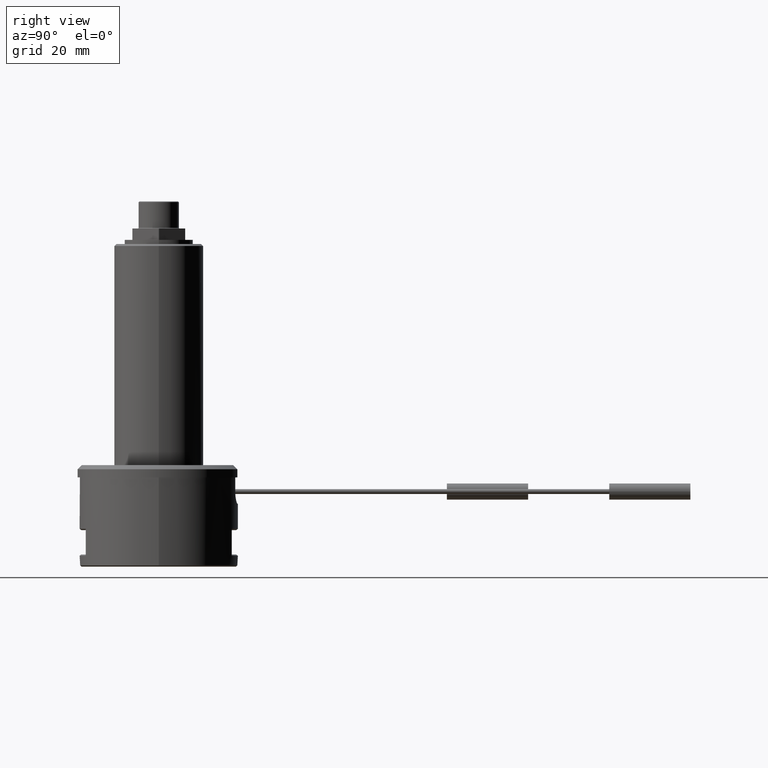
[diagram: clean part render]
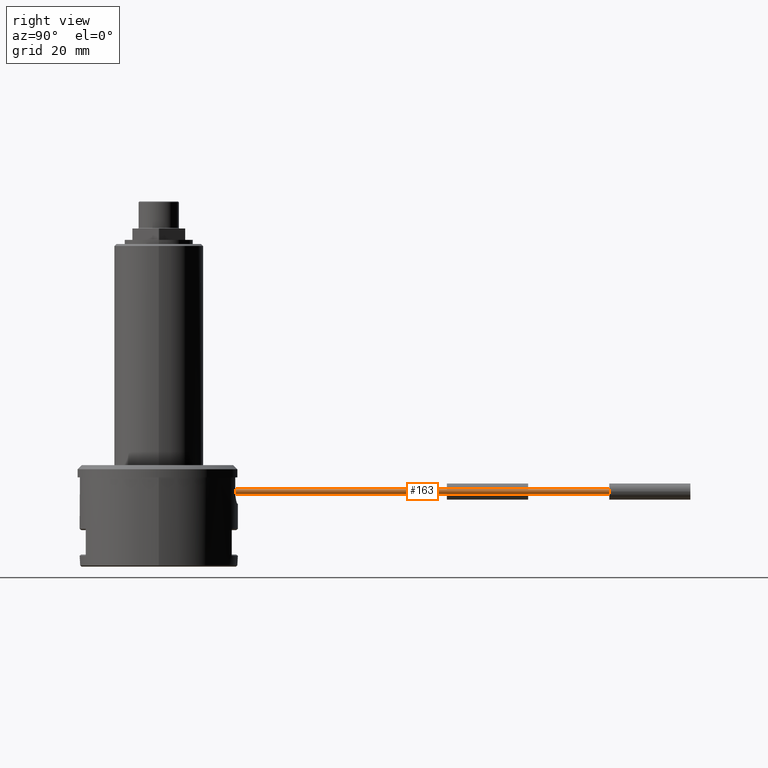
[diagram: same view with one face highlighted and labeled with its STEP entity id]
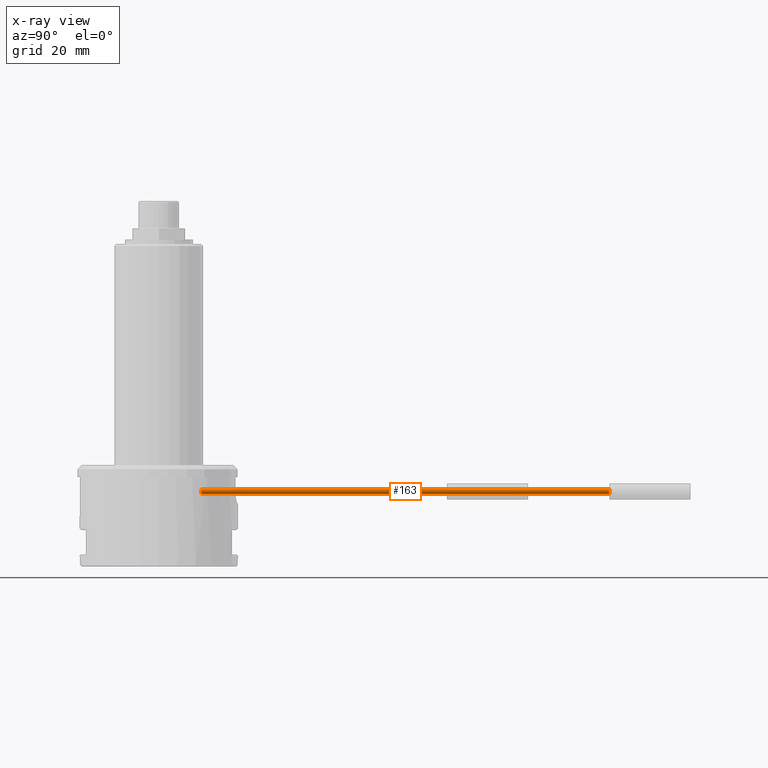
[diagram: x-ray of the same camera — body ghosted, the highlighted face saturated]
A machine part, right view. The second image highlights one B-rep face of the part: STEP entity #163.
The next image is the same camera in x-ray: the body ghosted, the highlighted face saturated — about 0% of this face is hidden behind the body in this view.
In plain terms, the highlighted cylindrical surface (bore or boss wall) has radius 0.6 mm, axis along (0, -1, 0).
Its self-contained STEP definition (entity closure, byte-faithful):
#51=B_SPLINE_CURVE_WITH_KNOTS('',3,(#1471,#1472,#1473,#1474,#1475,#1476,
#1477,#1478,#1479,#1480,#1481,#1482,#1483,#1484,#1485,#1486,#1487,#1488,
#1489,#1490,#1491,#1492,#1493,#1494,#1495,#1496,#1497,#1498,#1499,#1500,
#1501,#1502,#1503,#1504,#1505,#1506,#1507,#1508,#1509,#1510,#1511,#1512,
#1513,#1514,#1515,#1516,#1517,#1518,#1519,#1520,#1521,#1522,#1523,#1524,
#1525,#1526,#1527,#1528),.UNSPECIFIED.,.T.,.F.,(1,3,3,3,3,3,3,3,3,3,3,3,
3,3,3,3,3,3,3,3,3,1),(-0.0368720802815017,0.,0.0557742989657597,0.11163351685579,
0.166177446941804,0.219065034009753,0.270861475775484,0.322242468032284,
0.37385818799038,0.426338903139108,0.480247896041718,0.535857703218907,
0.592750324818179,0.649530104049342,0.704312651862768,0.756186565040042,
0.806141649324129,0.856262775636491,0.908363747585336,0.963127919718498,
1.,1.05577429896576),.UNSPECIFIED.);
#83=CYLINDRICAL_SURFACE('',#1042,0.6);
#163=ADVANCED_FACE('',(#344,#345),#83,.T.);
#344=FACE_BOUND('',#423,.T.);
#345=FACE_BOUND('',#424,.T.);
#423=EDGE_LOOP('',(#618));
#424=EDGE_LOOP('',(#619));
#618=ORIENTED_EDGE('',*,*,#893,.F.);
#619=ORIENTED_EDGE('',*,*,#811,.T.);
#718=VERTEX_POINT('',#1529);
#775=VERTEX_POINT('',#1809);
#811=EDGE_CURVE('',#718,#718,#51,.T.);
#893=EDGE_CURVE('',#775,#775,#947,.T.);
#947=CIRCLE('',#1041,0.6);
#1041=AXIS2_PLACEMENT_3D('',#1808,#1292,#1293);
#1042=AXIS2_PLACEMENT_3D('',#1810,#1294,#1295);
#1292=DIRECTION('',(0.,1.,0.));
#1293=DIRECTION('',(1.,0.,0.));
#1294=DIRECTION('',(0.,-1.,0.));
#1295=DIRECTION('',(0.,0.,-1.));
#1471=CARTESIAN_POINT('',(3.,10.5830052442584,17.9));
#1472=CARTESIAN_POINT('',(2.93157776268094,10.6024011254112,17.9));
#1473=CARTESIAN_POINT('',(2.86200103123959,10.6213682036753,17.9120184260052));
#1474=CARTESIAN_POINT('',(2.79703438724802,10.6384490710137,17.9353718391364));
#1475=CARTESIAN_POINT('',(2.7320103370553,10.6555450314467,17.9587458879455));
#1476=CARTESIAN_POINT('',(2.66978703597953,10.6712370364003,17.9941809411905));
#1477=CARTESIAN_POINT('',(2.61603314063602,10.6843984672556,18.0389474532007));
#1478=CARTESIAN_POINT('',(2.56353945073258,10.6972513417419,18.0826644598382));
#1479=CARTESIAN_POINT('',(2.51763653283456,10.7080714805244,18.1365556317496));
#1480=CARTESIAN_POINT('',(2.48266645677231,10.716173163234,18.1960822396577));
#1481=CARTESIAN_POINT('',(2.44874076668953,10.7240328881105,18.253831077492));
#1482=CARTESIAN_POINT('',(2.42414752977925,10.7295705886034,18.3185251548311));
#1483=CARTESIAN_POINT('',(2.41119404172678,10.7324807613683,18.3846416734607));
#1484=CARTESIAN_POINT('',(2.39850192828665,10.7353322128625,18.4494240974158));
#1485=CARTESIAN_POINT('',(2.39662628451943,10.7357472804405,18.5173773051816));
#1486=CARTESIAN_POINT('',(2.40573921106562,10.7337048053476,18.5827895810781));
#1487=CARTESIAN_POINT('',(2.41478198245278,10.7316780540909,18.6476982856363));
#1488=CARTESIAN_POINT('',(2.43488137661748,10.7271739203114,18.7118830111512));
#1489=CARTESIAN_POINT('',(2.46424264963384,10.720424812652,18.7701186064096));
#1490=CARTESIAN_POINT('',(2.49374362150502,10.7136435932171,18.8286312825003));
#1491=CARTESIAN_POINT('',(2.53337223225895,10.7044054890208,18.8827187066261));
#1492=CARTESIAN_POINT('',(2.57970577353719,10.6932276755888,18.9281971078861));
#1493=CARTESIAN_POINT('',(2.62681766353679,10.6818620881047,18.9744394925261));
#1494=CARTESIAN_POINT('',(2.68209331660847,10.6681802021503,19.0130234750021));
#1495=CARTESIAN_POINT('',(2.74094962383965,10.6530368984423,19.0411958080133));
#1496=CARTESIAN_POINT('',(2.80139777059471,10.6374840258962,19.0701300956099));
#1497=CARTESIAN_POINT('',(2.86720740483468,10.6199717562029,19.0888688729684));
#1498=CARTESIAN_POINT('',(2.9331298174092,10.6017333240478,19.0962620050618));
#1499=CARTESIAN_POINT('',(3.00110249062967,10.5829276562859,19.1038850718191));
#1500=CARTESIAN_POINT('',(3.07101520825842,10.5628431015272,19.0996660215352));
#1501=CARTESIAN_POINT('',(3.13734201604683,10.5431060449161,19.0840694912664));
#1502=CARTESIAN_POINT('',(3.20515211535748,10.5229276010331,19.0681241698844));
#1503=CARTESIAN_POINT('',(3.27110094765836,10.5025556331557,19.0398313705543));
#1504=CARTESIAN_POINT('',(3.32966917555234,10.4839545583418,19.0013165015144));
#1505=CARTESIAN_POINT('',(3.38808231784845,10.4654027381991,18.9629036178292));
#1506=CARTESIAN_POINT('',(3.44083466313042,10.4480920325361,18.9131574544189));
#1507=CARTESIAN_POINT('',(3.48293890100079,10.4340374070585,18.856047774744));
#1508=CARTESIAN_POINT('',(3.52356128335022,10.4204774330794,18.8009480659986));
#1509=CARTESIAN_POINT('',(3.5554329947202,10.4095789033144,18.7373143127868));
#1510=CARTESIAN_POINT('',(3.57519634981804,10.4027866968542,18.6707312483291));
#1511=CARTESIAN_POINT('',(3.59392805482079,10.3963490445882,18.607623829805));
#1512=CARTESIAN_POINT('',(3.60230450416012,10.3934311697856,18.5400395213616));
#1513=CARTESIAN_POINT('',(3.59943494783162,10.3944248545231,18.4739664962385));
#1514=CARTESIAN_POINT('',(3.59666819628346,10.3953829394921,18.4102606045871));
#1515=CARTESIAN_POINT('',(3.58340256704312,10.3999899088048,18.3462165570747));
#1516=CARTESIAN_POINT('',(3.56093147871386,10.4076782715409,18.2870308092989));
#1517=CARTESIAN_POINT('',(3.53837143034079,10.4153970714804,18.2276107530358));
#1518=CARTESIAN_POINT('',(3.50598754922911,10.4263979969205,18.1715115377314));
#1519=CARTESIAN_POINT('',(3.46658353146951,10.4394826796803,18.1227735319978));
#1520=CARTESIAN_POINT('',(3.42562877353259,10.4530823084891,18.0721174481607));
#1521=CARTESIAN_POINT('',(3.37605989462457,10.4692625828207,18.028076465855));
#1522=CARTESIAN_POINT('',(3.32180101851201,10.4864502093612,17.9935968952656));
#1523=CARTESIAN_POINT('',(3.26480921141747,10.5045035485822,17.9573806450128));
#1524=CARTESIAN_POINT('',(3.20114202724131,10.5241315372946,17.9307467899791));
#1525=CARTESIAN_POINT('',(3.1357461621129,10.5435807962378,17.9155575481952));
#1526=CARTESIAN_POINT('',(3.091395887525,10.5567709264236,17.905256483402));
#1527=CARTESIAN_POINT('',(3.04560595623492,10.5700771708475,17.9));
#1528=CARTESIAN_POINT('',(3.,10.5830052442584,17.9));
#1529=CARTESIAN_POINT('',(3.,10.5830052442584,17.9));
#1808=CARTESIAN_POINT('',(3.,111.,18.5));
#1809=CARTESIAN_POINT('',(3.6,111.,18.5));
#1810=CARTESIAN_POINT('',(3.,111.,18.5));